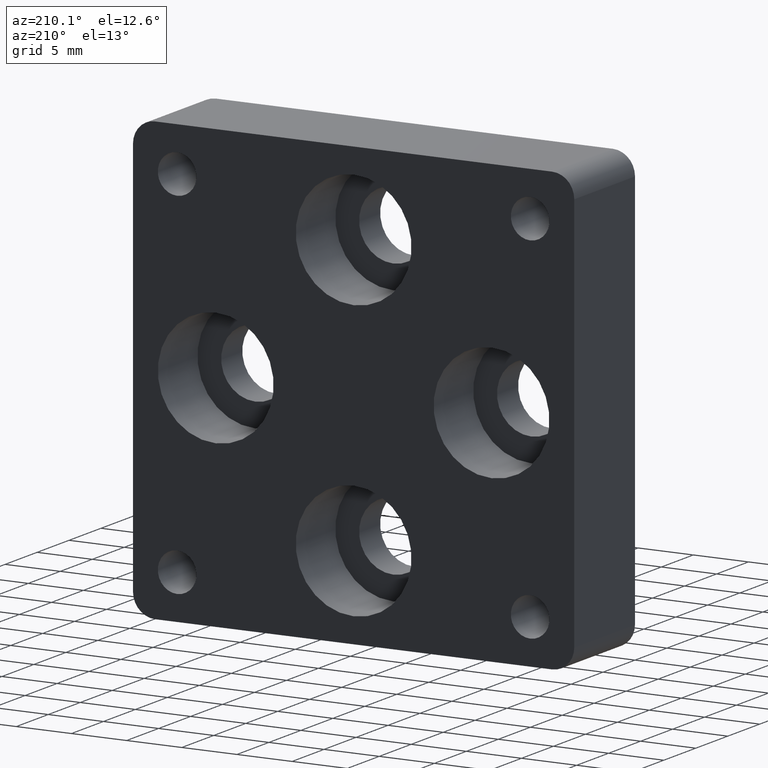
[diagram: clean part render]
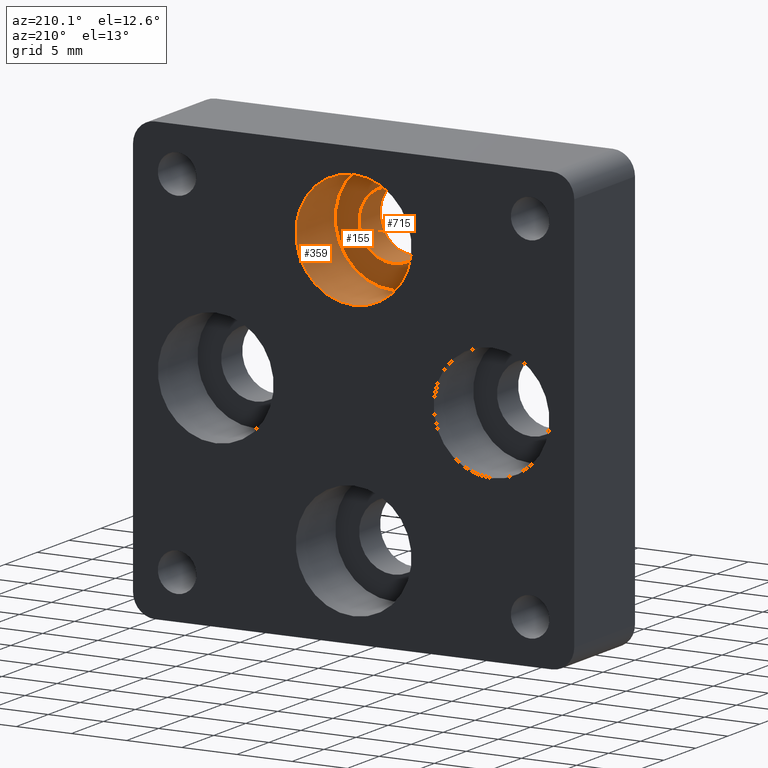
[diagram: same view with one multi-face feature highlighted, each face labeled with its STEP entity id]
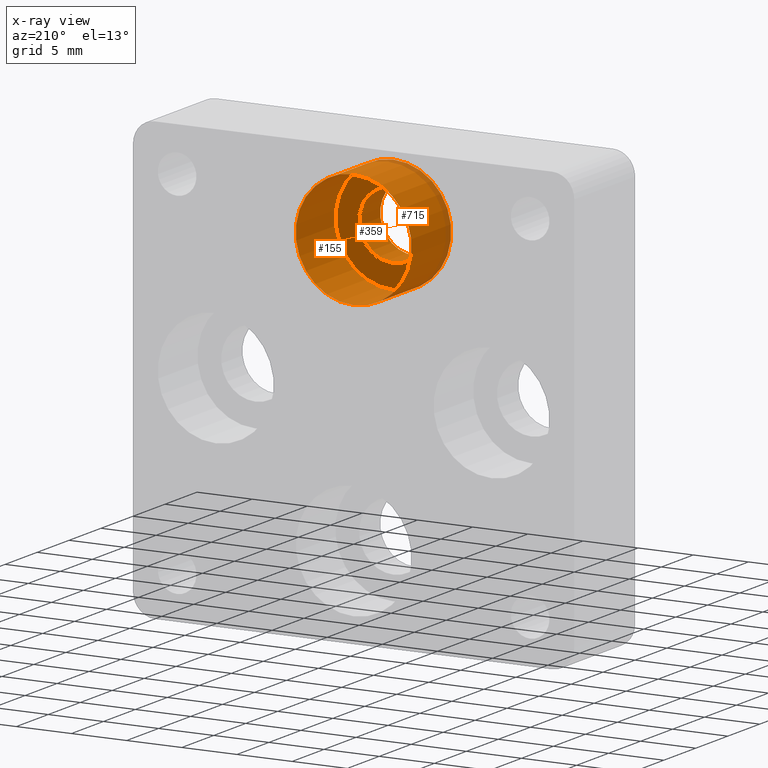
[diagram: x-ray of the same camera — body ghosted, the whole feature saturated]
A machine part, auxiliary view. The highlighted faces form ONE feature: a stepped (counterbored) hole: 2 coaxial cylindrical walls of radii 3.1 -> 5.25 mm joined by 1 annular planar shoulder face(s). The faces share edges in the B-rep.
The next image is the same camera in x-ray: the body ghosted and the whole hole feature saturated, so the bore chain is visible through the body.
Their STEP definitions:
[1] entity #359 (Cylinder):
#10 = DIRECTION ( 'NONE',  ( 0.000000000000000000, 1.000000000000000000, 0.000000000000000000 ) ) ;
#39 = EDGE_LOOP ( 'NONE', ( #153 ) ) ;
#61 = DIRECTION ( 'NONE',  ( 0.000000000000000000, 0.000000000000000000, 1.000000000000000000 ) ) ;
#69 = CARTESIAN_POINT ( 'NONE',  ( 0.000000000000000000, 3.299999999999999822, 17.75000000000000355 ) ) ;
#74 = VERTEX_POINT ( 'NONE', #69 ) ;
#105 = DIRECTION ( 'NONE',  ( 0.000000000000000000, 0.000000000000000000, 1.000000000000000000 ) ) ;
#108 = CYLINDRICAL_SURFACE ( 'NONE', #375, 5.250000000000000888 ) ;
#122 = CIRCLE ( 'NONE', #629, 5.250000000000000888 ) ;
#129 = DIRECTION ( 'NONE',  ( 0.000000000000000000, 0.000000000000000000, 1.000000000000000000 ) ) ;
#153 = ORIENTED_EDGE ( 'NONE', *, *, #457, .F. ) ;
#161 = AXIS2_PLACEMENT_3D ( 'NONE', #308, #249, #129 ) ;
#166 = FACE_OUTER_BOUND ( 'NONE', #706, .T. ) ;
#216 = FACE_OUTER_BOUND ( 'NONE', #39, .T. ) ;
#249 = DIRECTION ( 'NONE',  ( 0.000000000000000000, 1.000000000000000000, 0.000000000000000000 ) ) ;
#308 = CARTESIAN_POINT ( 'NONE',  ( 0.000000000000000000, 9.500000000000000000, 12.50000000000000000 ) ) ;
#359 = ADVANCED_FACE ( 'NONE', ( #216, #166 ), #108, .F. ) ;
#375 = AXIS2_PLACEMENT_3D ( 'NONE', #414, #607, #105 ) ;
#414 = CARTESIAN_POINT ( 'NONE',  ( 0.000000000000000000, 3.299999999999999822, 12.50000000000000000 ) ) ;
#457 = EDGE_CURVE ( 'NONE', #74, #74, #122, .T. ) ;
#486 = VERTEX_POINT ( 'NONE', #621 ) ;
#498 = EDGE_CURVE ( 'NONE', #486, #486, #770, .T. ) ;
#602 = ORIENTED_EDGE ( 'NONE', *, *, #498, .T. ) ;
#607 = DIRECTION ( 'NONE',  ( -0.000000000000000000, 1.000000000000000000, -0.000000000000000000 ) ) ;
#617 = CARTESIAN_POINT ( 'NONE',  ( 0.000000000000000000, 3.299999999999999822, 12.50000000000000000 ) ) ;
#621 = CARTESIAN_POINT ( 'NONE',  ( 0.000000000000000000, 9.500000000000000000, 17.75000000000000355 ) ) ;
#629 = AXIS2_PLACEMENT_3D ( 'NONE', #617, #10, #61 ) ;
#706 = EDGE_LOOP ( 'NONE', ( #602 ) ) ;
#770 = CIRCLE ( 'NONE', #161, 5.250000000000000888 ) ;
[2] entity #715 (Cylinder):
#29 = DIRECTION ( 'NONE',  ( 0.000000000000000000, 0.000000000000000000, -1.000000000000000000 ) ) ;
#35 = DIRECTION ( 'NONE',  ( 0.000000000000000000, 0.000000000000000000, 1.000000000000000000 ) ) ;
#79 = FACE_OUTER_BOUND ( 'NONE', #413, .T. ) ;
#86 = CIRCLE ( 'NONE', #195, 3.100000000000000533 ) ;
#162 = CARTESIAN_POINT ( 'NONE',  ( 0.000000000000000000, 3.299999999999999822, 15.60000000000000142 ) ) ;
#178 = CIRCLE ( 'NONE', #738, 3.100000000000000533 ) ;
#195 = AXIS2_PLACEMENT_3D ( 'NONE', #329, #703, #35 ) ;
#263 = EDGE_CURVE ( 'NONE', #537, #537, #86, .T. ) ;
#268 = DIRECTION ( 'NONE',  ( -0.000000000000000000, -1.000000000000000000, -0.000000000000000000 ) ) ;
#286 = ORIENTED_EDGE ( 'NONE', *, *, #263, .T. ) ;
#329 = CARTESIAN_POINT ( 'NONE',  ( 0.000000000000000000, 3.299999999999999822, 12.50000000000000000 ) ) ;
#389 = CARTESIAN_POINT ( 'NONE',  ( 0.000000000000000000, 0.000000000000000000, 12.50000000000000000 ) ) ;
#413 = EDGE_LOOP ( 'NONE', ( #286 ) ) ;
#495 = CARTESIAN_POINT ( 'NONE',  ( 0.000000000000000000, 0.000000000000000000, 9.400000000000000355 ) ) ;
#520 = DIRECTION ( 'NONE',  ( 0.000000000000000000, 0.000000000000000000, -1.000000000000000000 ) ) ;
#535 = ORIENTED_EDGE ( 'NONE', *, *, #694, .F. ) ;
#537 = VERTEX_POINT ( 'NONE', #162 ) ;
#586 = CARTESIAN_POINT ( 'NONE',  ( 0.000000000000000000, 9.500000000000000000, 12.50000000000000000 ) ) ;
#634 = FACE_OUTER_BOUND ( 'NONE', #664, .T. ) ;
#664 = EDGE_LOOP ( 'NONE', ( #535 ) ) ;
#690 = VERTEX_POINT ( 'NONE', #495 ) ;
#694 = EDGE_CURVE ( 'NONE', #690, #690, #178, .T. ) ;
#703 = DIRECTION ( 'NONE',  ( 0.000000000000000000, 1.000000000000000000, 0.000000000000000000 ) ) ;
#708 = DIRECTION ( 'NONE',  ( 0.000000000000000000, 1.000000000000000000, -0.000000000000000000 ) ) ;
#710 = AXIS2_PLACEMENT_3D ( 'NONE', #586, #268, #520 ) ;
#715 = ADVANCED_FACE ( 'NONE', ( #634, #79 ), #777, .F. ) ;
#738 = AXIS2_PLACEMENT_3D ( 'NONE', #389, #708, #29 ) ;
#777 = CYLINDRICAL_SURFACE ( 'NONE', #710, 3.100000000000000533 ) ;
[3] entity #155 (Plane):
#7 = PLANE ( 'NONE',  #685 ) ;
#10 = DIRECTION ( 'NONE',  ( 0.000000000000000000, 1.000000000000000000, 0.000000000000000000 ) ) ;
#30 = EDGE_LOOP ( 'NONE', ( #732 ) ) ;
#35 = DIRECTION ( 'NONE',  ( 0.000000000000000000, 0.000000000000000000, 1.000000000000000000 ) ) ;
#61 = DIRECTION ( 'NONE',  ( 0.000000000000000000, 0.000000000000000000, 1.000000000000000000 ) ) ;
#62 = FACE_BOUND ( 'NONE', #220, .T. ) ;
#69 = CARTESIAN_POINT ( 'NONE',  ( 0.000000000000000000, 3.299999999999999822, 17.75000000000000355 ) ) ;
#74 = VERTEX_POINT ( 'NONE', #69 ) ;
#86 = CIRCLE ( 'NONE', #195, 3.100000000000000533 ) ;
#122 = CIRCLE ( 'NONE', #629, 5.250000000000000888 ) ;
#136 = DIRECTION ( 'NONE',  ( 0.000000000000000000, 1.000000000000000000, 0.000000000000000000 ) ) ;
#155 = ADVANCED_FACE ( 'NONE', ( #62, #310 ), #7, .T. ) ;
#162 = CARTESIAN_POINT ( 'NONE',  ( 0.000000000000000000, 3.299999999999999822, 15.60000000000000142 ) ) ;
#195 = AXIS2_PLACEMENT_3D ( 'NONE', #329, #703, #35 ) ;
#220 = EDGE_LOOP ( 'NONE', ( #412 ) ) ;
#263 = EDGE_CURVE ( 'NONE', #537, #537, #86, .T. ) ;
#310 = FACE_OUTER_BOUND ( 'NONE', #30, .T. ) ;
#329 = CARTESIAN_POINT ( 'NONE',  ( 0.000000000000000000, 3.299999999999999822, 12.50000000000000000 ) ) ;
#412 = ORIENTED_EDGE ( 'NONE', *, *, #263, .F. ) ;
#433 = DIRECTION ( 'NONE',  ( 0.000000000000000000, -0.000000000000000000, 1.000000000000000000 ) ) ;
#457 = EDGE_CURVE ( 'NONE', #74, #74, #122, .T. ) ;
#537 = VERTEX_POINT ( 'NONE', #162 ) ;
#617 = CARTESIAN_POINT ( 'NONE',  ( 0.000000000000000000, 3.299999999999999822, 12.50000000000000000 ) ) ;
#629 = AXIS2_PLACEMENT_3D ( 'NONE', #617, #10, #61 ) ;
#685 = AXIS2_PLACEMENT_3D ( 'NONE', #698, #136, #433 ) ;
#698 = CARTESIAN_POINT ( 'NONE',  ( 0.000000000000000000, 3.299999999999999822, 12.50000000000000000 ) ) ;
#703 = DIRECTION ( 'NONE',  ( 0.000000000000000000, 1.000000000000000000, 0.000000000000000000 ) ) ;
#732 = ORIENTED_EDGE ( 'NONE', *, *, #457, .T. ) ;